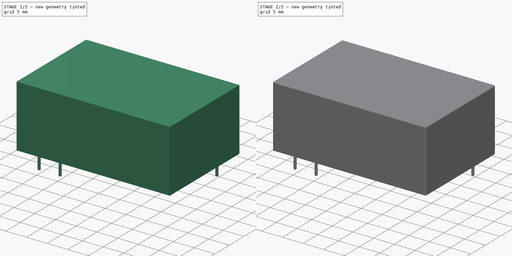
[diagram: build sequence overview — one tinted view per stage of 2, left to right]
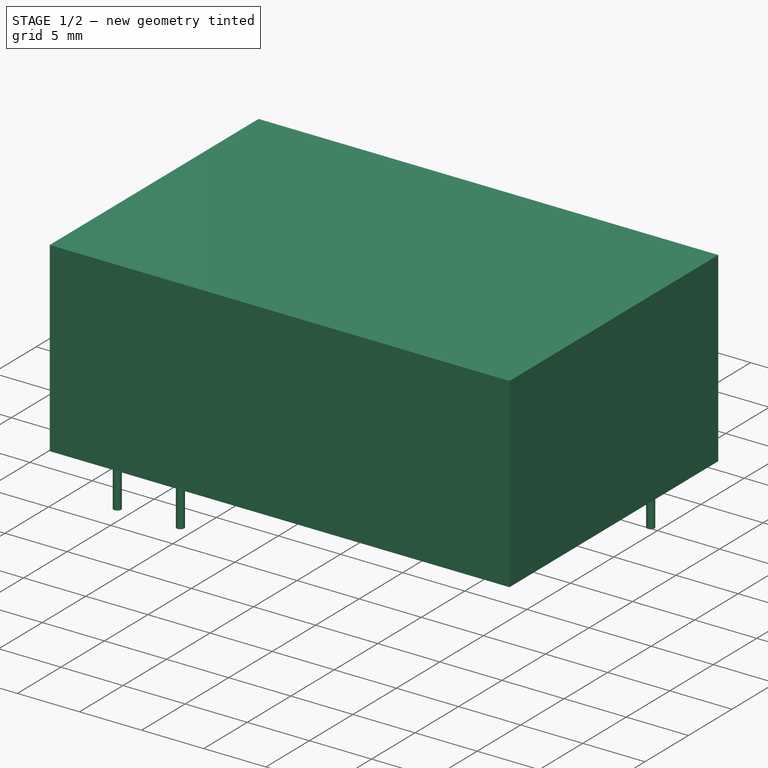
[diagram: stage 1 of 2 — iso view after this stage's code; geometry added in this stage tinted green]
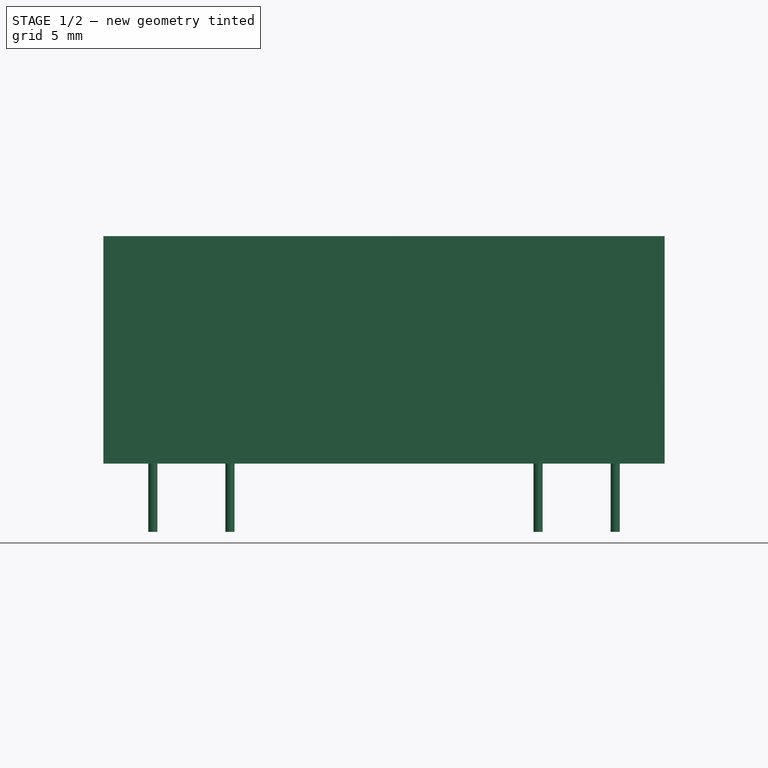
[diagram: stage 1 of 2 — front view after this stage's code; geometry added in this stage tinted green]
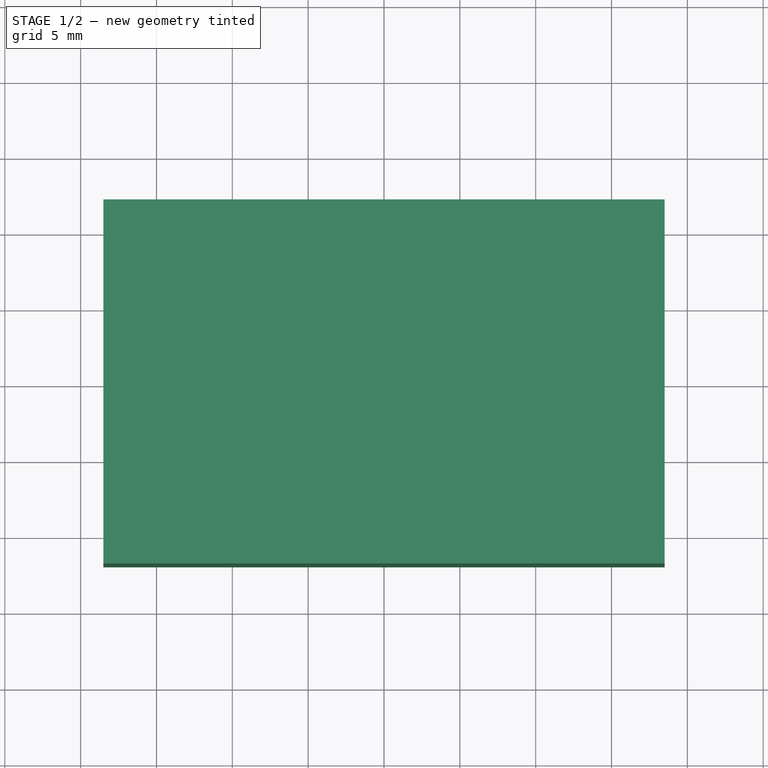
[diagram: stage 1 of 2 — top view after this stage's code; geometry added in this stage tinted green]
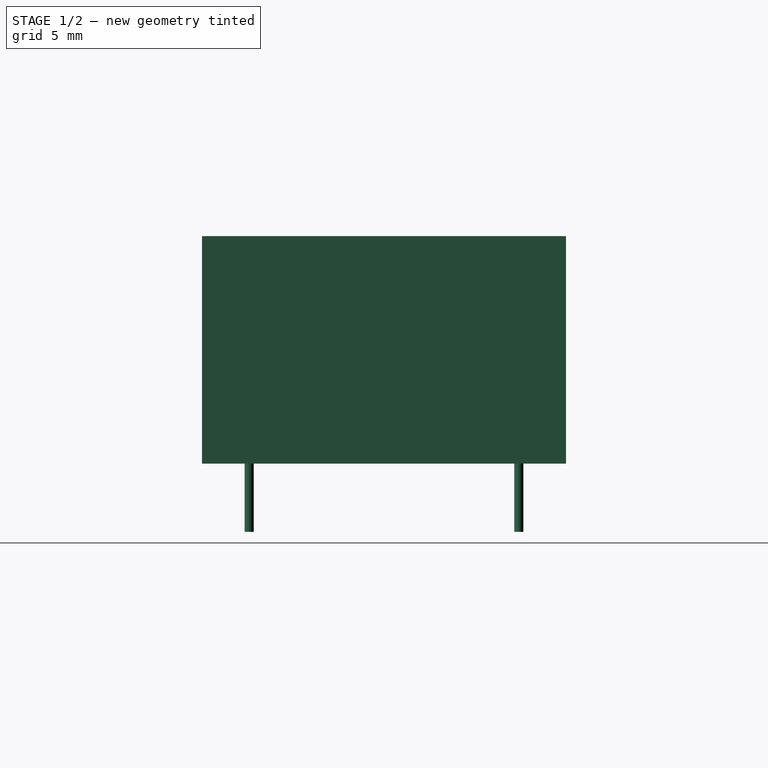
[diagram: stage 1 of 2 — right view after this stage's code; geometry added in this stage tinted green]
FCSTD DOCUMENT  (FreeCAD 1.0R39109 (Git))
Label: mini-power-supply_ac-xx-3-text
License: All rights reserved
LicenseURL: http://en.wikipedia.org/wiki/All_rights_reserved
objects: Sketcher::SketchObject×3, PartDesign::Pad×2, Part::Fillet×2, PartDesign::Body×1
note: 15 computed .brp shape members not serialized (recipe doc carries the construction recipe); baked Part::Feature solids carry a one-line shape summary decoded from their .brp

FEATURE [Sketcher::SketchObject] Sketch
  ArcFitTolerance = 1e-06
  AttachmentSupport = -> [XY_Plane]
  FullyConstrained = true
  MakeInternals = false
  MapMode = 5
  sketch-geometry (4):
    g0: LineSegment StartX=-18.5 StartY=12 StartZ=0 EndX=-18.5 EndY=-12 EndZ=0
    g1: LineSegment StartX=-18.5 StartY=-12 StartZ=0 EndX=18.5 EndY=-12 EndZ=0
    g2: LineSegment StartX=18.5 StartY=-12 StartZ=0 EndX=18.5 EndY=12 EndZ=0
    g3: LineSegment StartX=18.5 StartY=12 StartZ=0 EndX=-18.5 EndY=12 EndZ=0
  constraints (11):
    c: Coincident(g0,g1)
    c: Coincident(g1,g2)
    c: Coincident(g2,g3)
    c: Coincident(g3,g0)
    c: Vertical(g0)
    c: Vertical(g2)
    c: Horizontal(g1)
    c: Horizontal(g3)
    c: Symmetric(g0,g1,g-1)
    c: DistanceX(g3,g3) = 37
    c: DistanceY(g2,g2) = 24
FEATURE [PartDesign::Pad] Pad
  Direction = (0,0,1)
  Length = 15
  Length2 = 10
  Profile = -> Sketch
  ReferenceAxis = -> Sketch [N_Axis]
  Refine = true
  Suppressed = false
  Type = 0
FEATURE [Sketcher::SketchObject] Sketch001
  ArcFitTolerance = 1e-06
  AttachmentSupport = -> [Pad]
  FullyConstrained = true
  MakeInternals = false
  MapMode = 5
  Placement = pos=(0,0,0) rot=(1,0,0;3.14159rad)
  sketch-geometry (5):
    g0: Circle CenterX=-15.24 CenterY=8.89 CenterZ=0 NormalX=0 NormalY=0 NormalZ=1 AngleXU=0 Radius=0.3
    g1: Circle CenterX=-10.16 CenterY=8.89 CenterZ=0 NormalX=0 NormalY=0 NormalZ=1 AngleXU=0 Radius=0.3
    g2: Circle CenterX=10.16 CenterY=-8.89 CenterZ=0 NormalX=0 NormalY=0 NormalZ=1 AngleXU=0 Radius=0.3
    g3: Circle CenterX=15.24 CenterY=-8.89 CenterZ=0 NormalX=0 NormalY=0 NormalZ=1 AngleXU=0 Radius=0.3
    g4: Circle CenterX=-15.24 CenterY=-8.89 CenterZ=0 NormalX=0 NormalY=0 NormalZ=1 AngleXU=0 Radius=0.3
  constraints (14):
    c: Equal(g1,g0)
    c: Equal(g4,g0)
    c: Equal(g2,g0)
    c: Equal(g3,g0)
    c: DistanceX(g0,g1) = 5.08
    c: DistanceX(g2,g3) = 5.08
    c: Horizontal(g0,g1)
    c: Horizontal(g3,g2)
    c: Diameter(g0) = 0.6
    c: Vertical(g4,g0)
    c: Horizontal(g4,g3)
    c: DistanceX(g4,g2) = 25.4
    c: DistanceY(g4,g0) = 17.78
    c: Symmetric(g0,g3,g-1)
FEATURE [PartDesign::Pad] Pad001
  BaseFeature = -> Pad
  Direction = (0,0,-1)
  Length = 4.5
  Length2 = 10
  Profile = -> Sketch001
  ReferenceAxis = -> Sketch001 [N_Axis]
  Refine = true
  Suppressed = false
  Type = 0
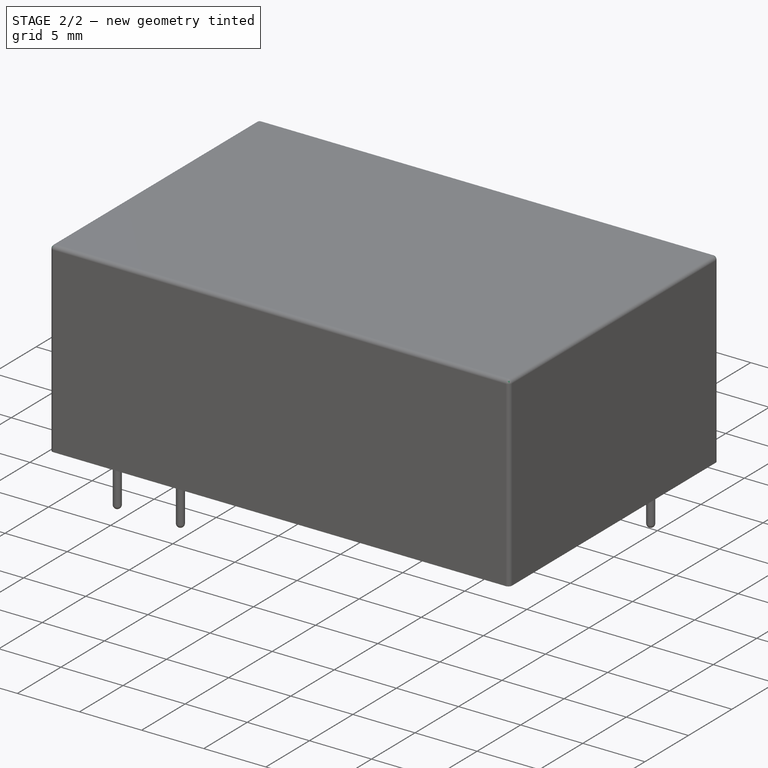
[diagram: stage 2 of 2 — iso view after this stage's code; geometry added in this stage tinted green]
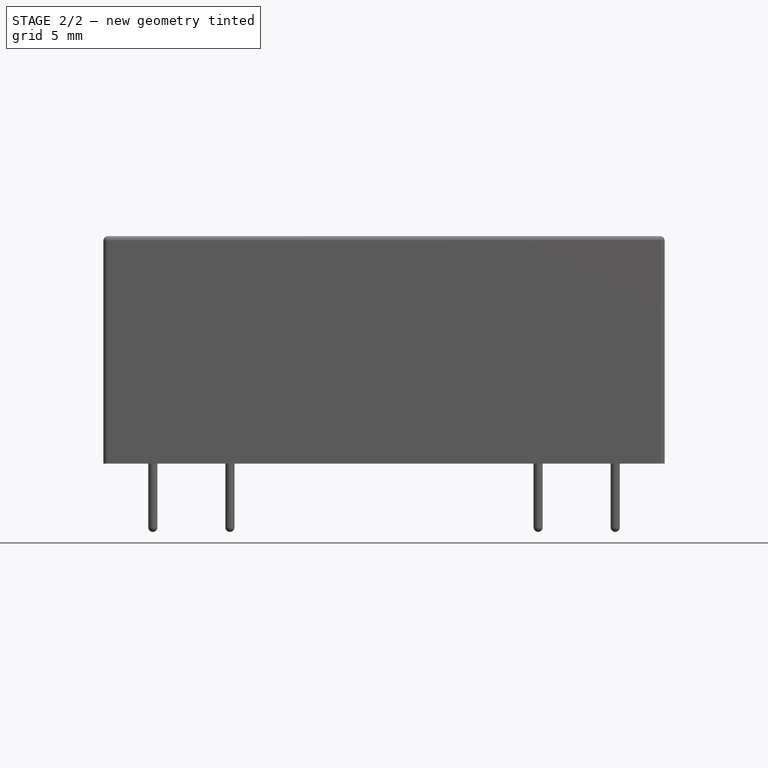
[diagram: stage 2 of 2 — front view after this stage's code; geometry added in this stage tinted green]
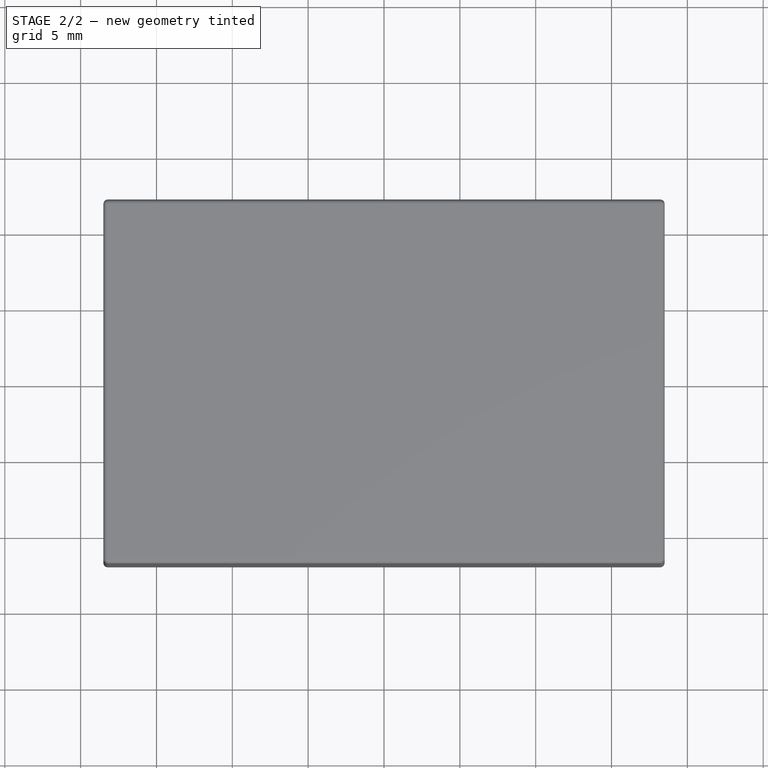
[diagram: stage 2 of 2 — top view after this stage's code; geometry added in this stage tinted green]
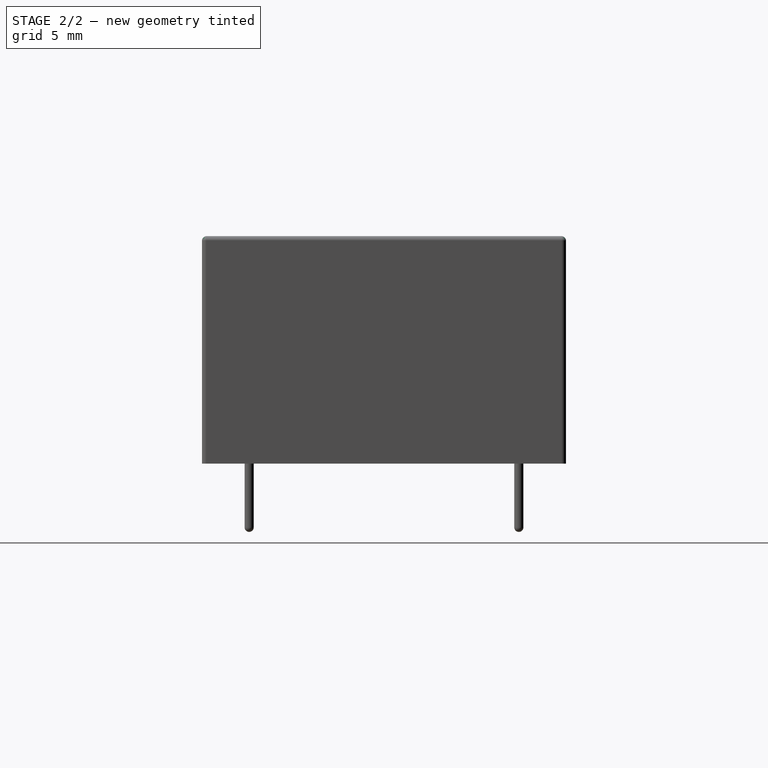
[diagram: stage 2 of 2 — right view after this stage's code; geometry added in this stage tinted green]
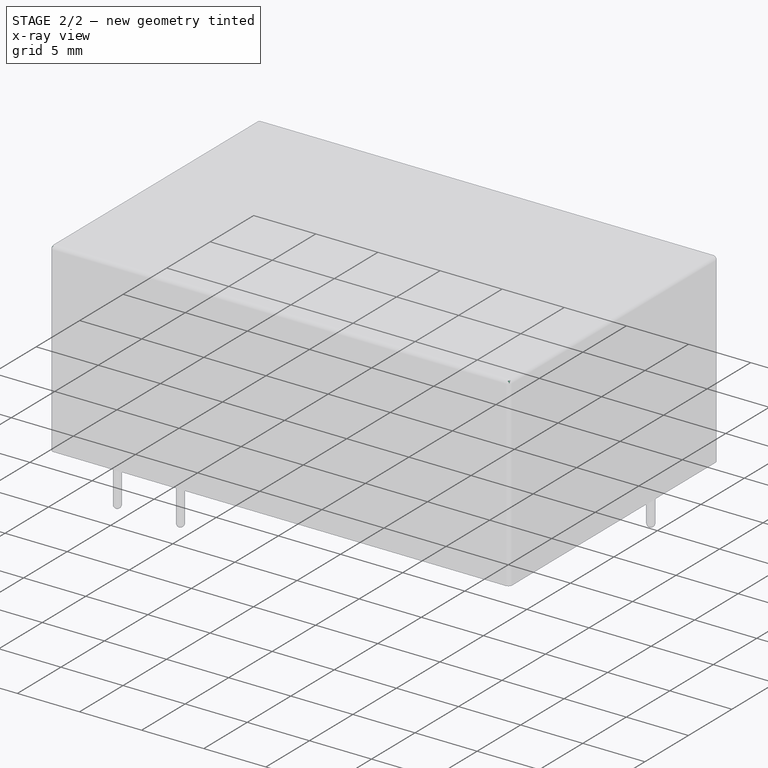
[diagram: stage 2 of 2 — x-ray composite at the iso view; earlier geometry ghosted, this stage's added geometry solid]
FEATURE [Part::Fillet] Fillet
  Base = -> Pad001
  EdgeLinks = -> Pad001 [Edge1,Edge2,Edge4,Edge5,Edge7,Edge8,Edge10,Edge17]
  Edges = 8 edges r=0.3: [Edge1,Edge2,Edge4,Edge5,Edge7,Edge8,Edge10,Edge17]
FEATURE [Part::Fillet] Fillet001
  Base = -> Fillet
  EdgeLinks = -> Fillet [Edge34,Edge36,Edge38,Edge40,Edge42]
  Edges = 5 edges r=0.3: [Edge34,Edge36,Edge38,Edge40,Edge42]
FEATURE [Sketcher::SketchObject] Sketch002
  ArcFitTolerance = 1e-06
  AttachmentSupport = -> [Pad001]
  FullyConstrained = true
  MakeInternals = false
  MapMode = 5
  Placement = pos=(0,0,15) rot=(0,0,1;0rad)
FEATURE [PartDesign::Body] Body
  AllowCompound = false
  Group = -> [Sketch,Pad,Sketch001,Pad001,Sketch002]
  Origin = -> Origin
  Tip = -> Pad001
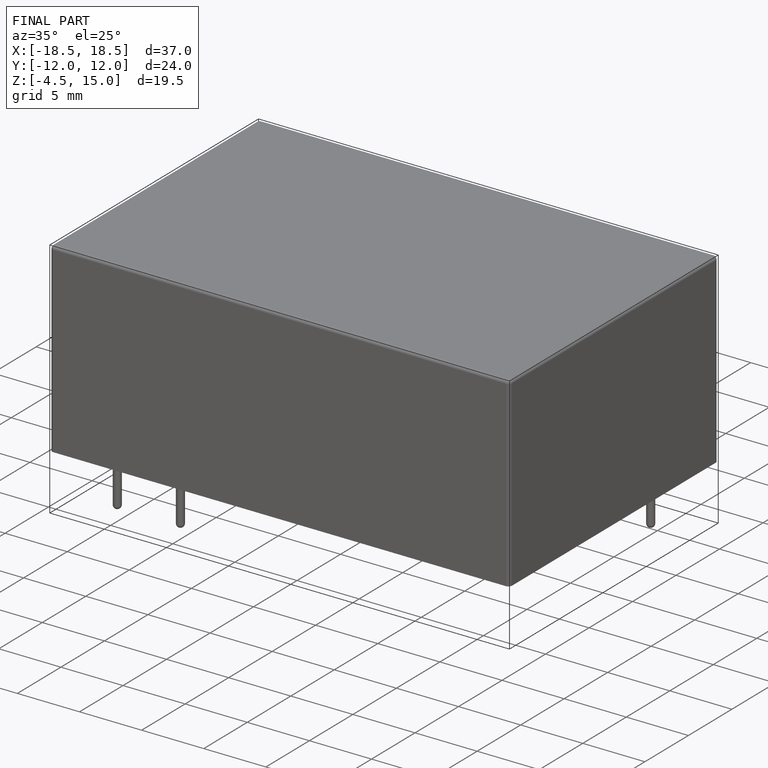
[diagram: finished part — iso view with bounding-box wireframe]
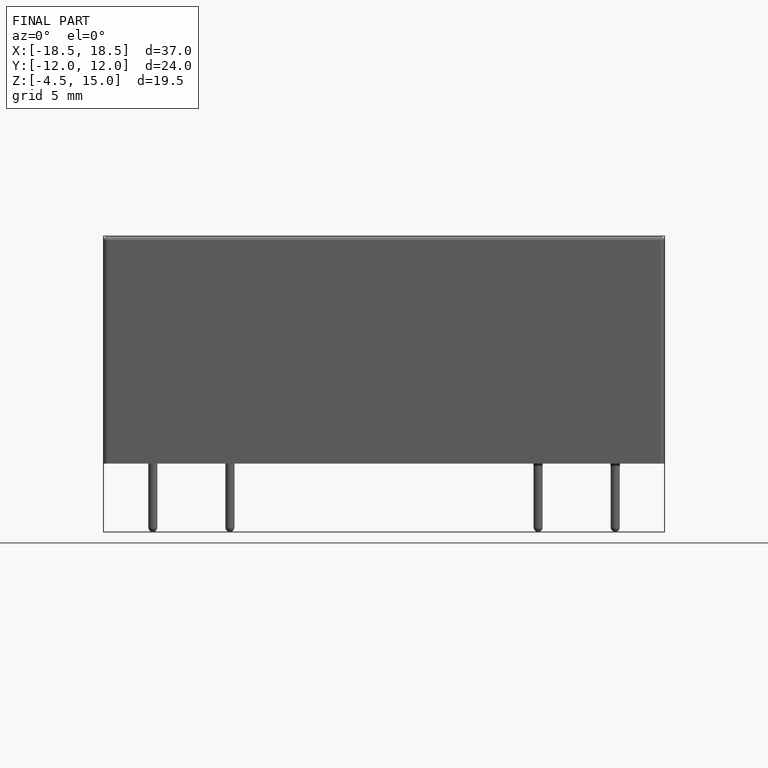
[diagram: finished part — front view with bounding-box wireframe]
